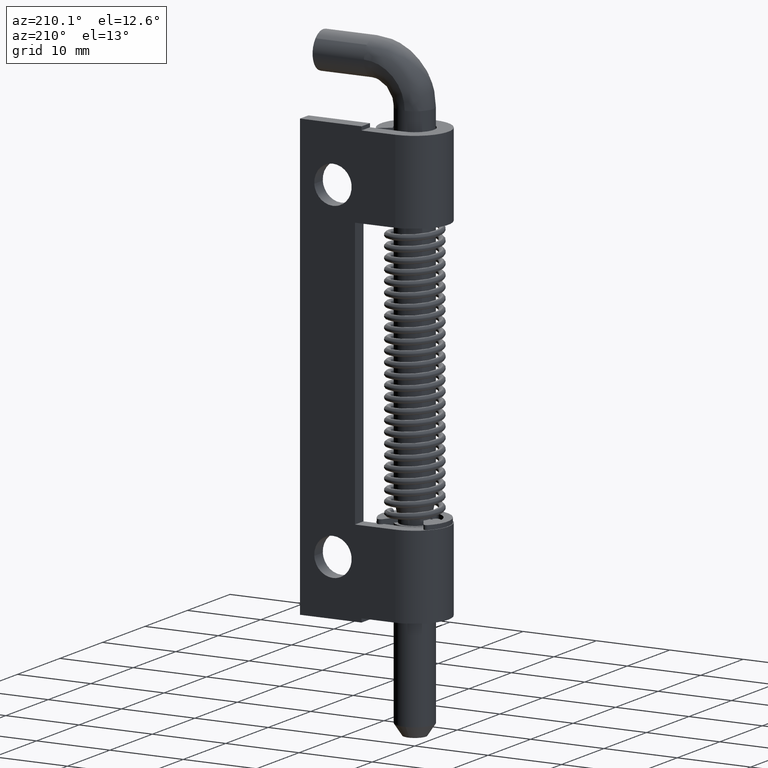
[diagram: clean part render]
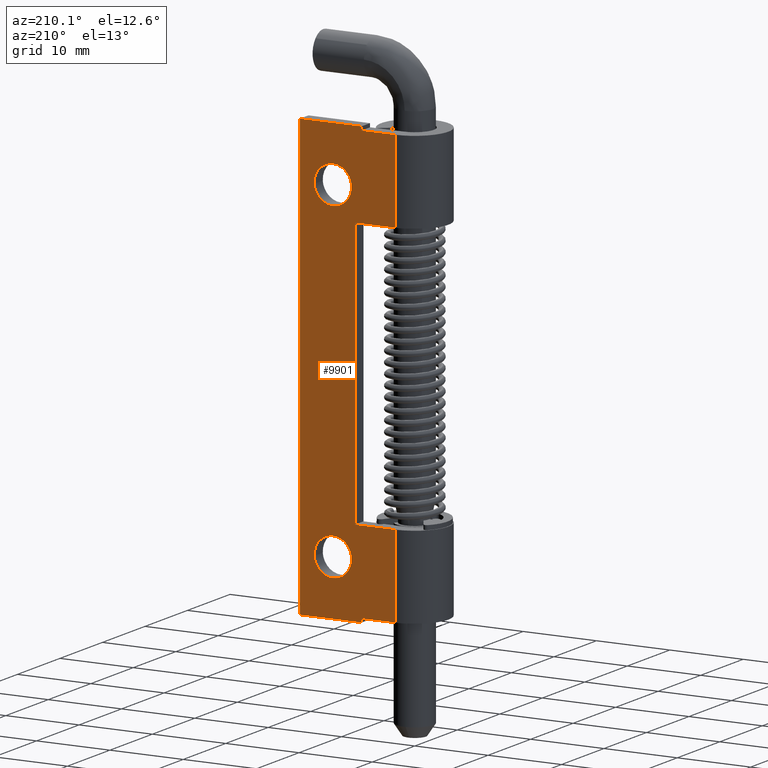
[diagram: same view with one face highlighted and labeled with its STEP entity id]
A machine part, auxiliary view. The second image highlights one B-rep face of the part: STEP entity #9901.
In plain terms, the highlighted face is a freeform B-spline surface patch.
Its self-contained STEP definition (entity closure, byte-faithful):
#9008=CARTESIAN_POINT('',(5.967825707789778,4.599999999999941,66.800987298552883));
#9009=VERTEX_POINT('',#9008);
#9010=CARTESIAN_POINT('',(8.500000000000101,4.599999999999940,63.950000000034912));
#9011=VERTEX_POINT('',#9010);
#9012=CARTESIAN_POINT('',(5.967825707789778,4.599999999999941,66.800987298552897));
#9013=CARTESIAN_POINT('',(5.950000000000101,4.599999999999940,66.651021505292022));
#9014=CARTESIAN_POINT('',(5.950000000000101,4.599999999999940,66.500000000034902));
#9015=CARTESIAN_POINT('',(5.950000000000101,4.599999999999941,63.950000000034919));
#9016=CARTESIAN_POINT('',(8.500000000000101,4.599999999999940,63.950000000034912));
#9024=(BOUNDED_CURVE()B_SPLINE_CURVE(2,(#9012,#9013,#9014,#9015,#9016),.UNSPECIFIED.,.F.,.U.)B_SPLINE_CURVE_WITH_KNOTS((3,2,3),(0.229562473496523,0.250000000000000,0.500000000000000),.UNSPECIFIED.)CURVE()GEOMETRIC_REPRESENTATION_ITEM()RATIONAL_B_SPLINE_CURVE((0.956026754150408,0.976055948311246,1.0,0.707106781186548,1.0))REPRESENTATION_ITEM(''));
#9025=EDGE_CURVE('',#9009,#9011,#9024,.T.);
#9066=CARTESIAN_POINT('',(11.045243735731930,4.599999999999939,66.344326220232702));
#9067=VERTEX_POINT('',#9066);
#9073=CARTESIAN_POINT('',(8.500000000000101,4.599999999999940,63.950000000034912));
#9074=CARTESIAN_POINT('',(10.898800463077887,4.599999999999940,63.950000000034912));
#9075=CARTESIAN_POINT('',(11.045243735731932,4.599999999999939,66.344326220232702));
#9083=(BOUNDED_CURVE()B_SPLINE_CURVE(2,(#9073,#9074,#9075),.UNSPECIFIED.,.F.,.U.)B_SPLINE_CURVE_WITH_KNOTS((3,3),(0.500000000000000,0.739332961701217),.UNSPECIFIED.)CURVE()GEOMETRIC_REPRESENTATION_ITEM()RATIONAL_B_SPLINE_CURVE((1.0,0.719603993916695,0.976072040514270))REPRESENTATION_ITEM(''));
#9084=EDGE_CURVE('',#9011,#9067,#9083,.T.);
#9107=CARTESIAN_POINT('',(8.500000000000101,4.599999999999940,69.050000000034899));
#9108=VERTEX_POINT('',#9107);
#9109=CARTESIAN_POINT('',(8.500000000000101,4.599999999999940,69.050000000034899));
#9110=CARTESIAN_POINT('',(6.235154959082160,4.599999999999941,69.050000000034899));
#9111=CARTESIAN_POINT('',(5.967825707789778,4.599999999999941,66.800987298552883));
#9119=(BOUNDED_CURVE()B_SPLINE_CURVE(2,(#9109,#9110,#9111),.UNSPECIFIED.,.F.,.U.)B_SPLINE_CURVE_WITH_KNOTS((3,3),(0.0,0.229562473496524),.UNSPECIFIED.)CURVE()GEOMETRIC_REPRESENTATION_ITEM()RATIONAL_B_SPLINE_CURVE((1.0,0.731050832875301,0.956026754150408))REPRESENTATION_ITEM(''));
#9120=EDGE_CURVE('',#9108,#9009,#9119,.T.);
#9122=CARTESIAN_POINT('',(11.045243735731930,4.599999999999939,66.344326220232702));
#9123=CARTESIAN_POINT('',(11.050000000000106,4.599999999999940,66.422090449624008));
#9124=CARTESIAN_POINT('',(11.050000000000100,4.599999999999940,66.500000000034902));
#9125=CARTESIAN_POINT('',(11.050000000000102,4.599999999999941,69.050000000034899));
#9126=CARTESIAN_POINT('',(8.500000000000101,4.599999999999940,69.050000000034899));
#9134=(BOUNDED_CURVE()B_SPLINE_CURVE(2,(#9122,#9123,#9124,#9125,#9126),.UNSPECIFIED.,.F.,.U.)B_SPLINE_CURVE_WITH_KNOTS((3,2,3),(0.739332961701218,0.750000000000000,1.0),.UNSPECIFIED.)CURVE()GEOMETRIC_REPRESENTATION_ITEM()RATIONAL_B_SPLINE_CURVE((0.976072040514272,0.987502787269854,1.0,0.707106781186548,1.0))REPRESENTATION_ITEM(''));
#9135=EDGE_CURVE('',#9067,#9108,#9134,.T.);
#9194=CARTESIAN_POINT('',(5.967825707789780,4.599999999999941,21.800987298552879));
#9195=VERTEX_POINT('',#9194);
#9196=CARTESIAN_POINT('',(8.500000000000101,4.599999999999940,18.950000000034901));
#9197=VERTEX_POINT('',#9196);
#9198=CARTESIAN_POINT('',(5.967825707789780,4.599999999999941,21.800987298552879));
#9199=CARTESIAN_POINT('',(5.950000000000101,4.599999999999939,21.651021505292036));
#9200=CARTESIAN_POINT('',(5.950000000000101,4.599999999999940,21.500000000034898));
#9201=CARTESIAN_POINT('',(5.950000000000101,4.599999999999941,18.950000000034894));
#9202=CARTESIAN_POINT('',(8.500000000000101,4.599999999999940,18.950000000034901));
#9210=(BOUNDED_CURVE()B_SPLINE_CURVE(2,(#9198,#9199,#9200,#9201,#9202),.UNSPECIFIED.,.F.,.U.)B_SPLINE_CURVE_WITH_KNOTS((3,2,3),(0.229562473496522,0.250000000000000,0.500000000000000),.UNSPECIFIED.)CURVE()GEOMETRIC_REPRESENTATION_ITEM()RATIONAL_B_SPLINE_CURVE((0.956026754150406,0.976055948311245,1.0,0.707106781186548,1.0))REPRESENTATION_ITEM(''));
#9211=EDGE_CURVE('',#9195,#9197,#9210,.T.);
#9252=CARTESIAN_POINT('',(11.045243735731930,4.599999999999940,21.344326220232709));
#9253=VERTEX_POINT('',#9252);
#9259=CARTESIAN_POINT('',(8.500000000000101,4.599999999999940,18.950000000034901));
#9260=CARTESIAN_POINT('',(10.898800463077887,4.599999999999940,18.950000000034898));
#9261=CARTESIAN_POINT('',(11.045243735731932,4.599999999999940,21.344326220232709));
#9269=(BOUNDED_CURVE()B_SPLINE_CURVE(2,(#9259,#9260,#9261),.UNSPECIFIED.,.F.,.U.)B_SPLINE_CURVE_WITH_KNOTS((3,3),(0.500000000000000,0.739332961701217),.UNSPECIFIED.)CURVE()GEOMETRIC_REPRESENTATION_ITEM()RATIONAL_B_SPLINE_CURVE((1.0,0.719603993916695,0.976072040514270))REPRESENTATION_ITEM(''));
#9270=EDGE_CURVE('',#9197,#9253,#9269,.T.);
#9293=CARTESIAN_POINT('',(8.500000000000101,4.599999999999940,24.050000000034899));
#9294=VERTEX_POINT('',#9293);
#9295=CARTESIAN_POINT('',(8.500000000000101,4.599999999999940,24.050000000034899));
#9296=CARTESIAN_POINT('',(6.235154959082173,4.599999999999939,24.050000000034903));
#9297=CARTESIAN_POINT('',(5.967825707789780,4.599999999999941,21.800987298552879));
#9305=(BOUNDED_CURVE()B_SPLINE_CURVE(2,(#9295,#9296,#9297),.UNSPECIFIED.,.F.,.U.)B_SPLINE_CURVE_WITH_KNOTS((3,3),(0.0,0.229562473496522),.UNSPECIFIED.)CURVE()GEOMETRIC_REPRESENTATION_ITEM()RATIONAL_B_SPLINE_CURVE((1.0,0.731050832875303,0.956026754150406))REPRESENTATION_ITEM(''));
#9306=EDGE_CURVE('',#9294,#9195,#9305,.T.);
#9308=CARTESIAN_POINT('',(11.045243735731924,4.599999999999940,21.344326220232709));
#9309=CARTESIAN_POINT('',(11.050000000000104,4.599999999999939,21.422090449624008));
#9310=CARTESIAN_POINT('',(11.050000000000100,4.599999999999940,21.500000000034898));
#9311=CARTESIAN_POINT('',(11.050000000000102,4.599999999999941,24.050000000034903));
#9312=CARTESIAN_POINT('',(8.500000000000101,4.599999999999940,24.050000000034899));
#9320=(BOUNDED_CURVE()B_SPLINE_CURVE(2,(#9308,#9309,#9310,#9311,#9312),.UNSPECIFIED.,.F.,.U.)B_SPLINE_CURVE_WITH_KNOTS((3,2,3),(0.739332961701219,0.750000000000000,1.0),.UNSPECIFIED.)CURVE()GEOMETRIC_REPRESENTATION_ITEM()RATIONAL_B_SPLINE_CURVE((0.976072040514272,0.987502787269854,1.0,0.707106781186548,1.0))REPRESENTATION_ITEM(''));
#9321=EDGE_CURVE('',#9253,#9294,#9320,.T.);
#9363=CARTESIAN_POINT('',(4.600000000000110,4.600000000000000,74.000000000034902));
#9364=VERTEX_POINT('',#9363);
#9372=CARTESIAN_POINT('',(4.600000000000110,4.600000000000000,73.500000000000000));
#9373=VERTEX_POINT('',#9372);
#9374=CARTESIAN_POINT('',(4.600000000000110,4.600000000000000,73.500000000000000));
#9375=CARTESIAN_POINT('',(4.600000000000110,4.600000000000000,74.000000000034902));
#9376=QUASI_UNIFORM_CURVE('',1,(#9374,#9375),.UNSPECIFIED.,.F.,.U.);
#9377=EDGE_CURVE('',#9373,#9364,#9376,.T.);
#9399=CARTESIAN_POINT('',(0.0,4.600000000000000,73.500000000000000));
#9400=VERTEX_POINT('',#9399);
#9456=CARTESIAN_POINT('',(0.0,4.600000000000000,73.500000000000000));
#9457=CARTESIAN_POINT('',(4.600000000000110,4.600000000000000,73.500000000000000));
#9458=QUASI_UNIFORM_CURVE('',1,(#9456,#9457),.UNSPECIFIED.,.F.,.U.);
#9459=EDGE_CURVE('',#9400,#9373,#9458,.T.);
#9471=CARTESIAN_POINT('',(0.0,4.600000000000000,25.750000000034849));
#9472=VERTEX_POINT('',#9471);
#9527=CARTESIAN_POINT('',(5.500000000000100,4.600000000000000,25.750000000034849));
#9528=VERTEX_POINT('',#9527);
#9534=CARTESIAN_POINT('',(5.500000000000100,4.600000000000000,25.750000000034849));
#9535=CARTESIAN_POINT('',(0.0,4.600000000000000,25.750000000034849));
#9536=QUASI_UNIFORM_CURVE('',1,(#9534,#9535),.UNSPECIFIED.,.F.,.U.);
#9537=EDGE_CURVE('',#9528,#9472,#9536,.T.);
#9547=CARTESIAN_POINT('',(0.0,4.600000000000000,62.250000000034902));
#9548=VERTEX_POINT('',#9547);
#9549=CARTESIAN_POINT('',(5.500000000000100,4.600000000000000,62.250000000034902));
#9550=VERTEX_POINT('',#9549);
#9551=CARTESIAN_POINT('',(0.0,4.600000000000000,62.250000000034902));
#9552=CARTESIAN_POINT('',(5.500000000000100,4.600000000000000,62.250000000034902));
#9553=QUASI_UNIFORM_CURVE('',1,(#9551,#9552),.UNSPECIFIED.,.F.,.U.);
#9554=EDGE_CURVE('',#9548,#9550,#9553,.T.);
#9631=CARTESIAN_POINT('',(5.500000000000100,4.600000000000000,62.250000000034902));
#9632=CARTESIAN_POINT('',(5.500000000000100,4.600000000000000,25.750000000034849));
#9633=QUASI_UNIFORM_CURVE('',1,(#9631,#9632),.UNSPECIFIED.,.F.,.U.);
#9634=EDGE_CURVE('',#9550,#9528,#9633,.T.);
#9645=CARTESIAN_POINT('',(4.600000000000110,4.600000000000000,14.500000000000000));
#9646=VERTEX_POINT('',#9645);
#9654=CARTESIAN_POINT('',(4.600000000000110,4.600000000000000,14.000000000034900));
#9655=VERTEX_POINT('',#9654);
#9656=CARTESIAN_POINT('',(4.600000000000110,4.600000000000000,14.000000000034900));
#9657=CARTESIAN_POINT('',(4.600000000000110,4.600000000000000,14.500000000000000));
#9658=QUASI_UNIFORM_CURVE('',1,(#9656,#9657),.UNSPECIFIED.,.F.,.U.);
#9659=EDGE_CURVE('',#9655,#9646,#9658,.T.);
#9683=CARTESIAN_POINT('',(0.0,4.600000000000000,14.500000000000000));
#9684=VERTEX_POINT('',#9683);
#9704=CARTESIAN_POINT('',(4.600000000000110,4.600000000000000,14.500000000000000));
#9705=CARTESIAN_POINT('',(0.0,4.600000000000000,14.500000000000000));
#9706=QUASI_UNIFORM_CURVE('',1,(#9704,#9705),.UNSPECIFIED.,.F.,.U.);
#9707=EDGE_CURVE('',#9646,#9684,#9706,.T.);
#9752=CARTESIAN_POINT('',(13.0,4.600000000000000,14.000000000034859));
#9753=VERTEX_POINT('',#9752);
#9754=CARTESIAN_POINT('',(13.0,4.600000000000000,14.000000000034859));
#9755=CARTESIAN_POINT('',(4.600000000000110,4.600000000000000,14.000000000034900));
#9756=QUASI_UNIFORM_CURVE('',1,(#9754,#9755),.UNSPECIFIED.,.F.,.U.);
#9757=EDGE_CURVE('',#9753,#9655,#9756,.T.);
#9779=CARTESIAN_POINT('',(13.0,4.600000000000000,74.000000000034902));
#9780=VERTEX_POINT('',#9779);
#9781=CARTESIAN_POINT('',(13.0,4.600000000000000,74.000000000034902));
#9782=CARTESIAN_POINT('',(4.600000000000110,4.600000000000000,74.000000000034902));
#9783=QUASI_UNIFORM_CURVE('',1,(#9781,#9782),.UNSPECIFIED.,.F.,.U.);
#9784=EDGE_CURVE('',#9780,#9364,#9783,.T.);
#9808=CARTESIAN_POINT('',(13.0,4.600000000000000,74.000000000034902));
#9809=CARTESIAN_POINT('',(13.0,4.600000000000000,14.000000000034859));
#9810=QUASI_UNIFORM_CURVE('',1,(#9808,#9809),.UNSPECIFIED.,.F.,.U.);
#9811=EDGE_CURVE('',#9780,#9753,#9810,.T.);
#9862=CARTESIAN_POINT('',(-0.649349974803478,4.600000000000000,76.996999883743257));
#9863=CARTESIAN_POINT('',(-0.649349974803478,4.600000000000000,11.002998507001100));
#9864=CARTESIAN_POINT('',(13.649350323490649,4.600000000000000,76.996999883743257));
#9865=CARTESIAN_POINT('',(13.649350323490649,4.600000000000000,11.002998507001100));
#9866=B_SPLINE_SURFACE_WITH_KNOTS('',1,1,((#9862,#9864),(#9863,#9865)),.UNSPECIFIED.,.F.,.F.,.U.,(2,2),(2,2),(0.0,65.994001376742162),(0.0,14.298700298294129),.UNSPECIFIED.);
#9867=CARTESIAN_POINT('',(0.0,4.600000000000000,73.500000000000000));
#9868=CARTESIAN_POINT('',(0.0,4.600000000000000,62.250000000034902));
#9869=QUASI_UNIFORM_CURVE('',1,(#9867,#9868),.UNSPECIFIED.,.F.,.U.);
#9870=EDGE_CURVE('',#9400,#9548,#9869,.T.);
#9871=ORIENTED_EDGE('',*,*,#9870,.F.);
#9872=ORIENTED_EDGE('',*,*,#9459,.T.);
#9873=ORIENTED_EDGE('',*,*,#9377,.T.);
#9874=ORIENTED_EDGE('',*,*,#9784,.F.);
#9875=ORIENTED_EDGE('',*,*,#9811,.T.);
#9876=ORIENTED_EDGE('',*,*,#9757,.T.);
#9877=ORIENTED_EDGE('',*,*,#9659,.T.);
#9878=ORIENTED_EDGE('',*,*,#9707,.T.);
#9879=CARTESIAN_POINT('',(0.0,4.600000000000000,25.750000000034849));
#9880=CARTESIAN_POINT('',(0.0,4.600000000000000,14.500000000000000));
#9881=QUASI_UNIFORM_CURVE('',1,(#9879,#9880),.UNSPECIFIED.,.F.,.U.);
#9882=EDGE_CURVE('',#9472,#9684,#9881,.T.);
#9883=ORIENTED_EDGE('',*,*,#9882,.F.);
#9884=ORIENTED_EDGE('',*,*,#9537,.F.);
#9885=ORIENTED_EDGE('',*,*,#9634,.F.);
#9886=ORIENTED_EDGE('',*,*,#9554,.F.);
#9887=EDGE_LOOP('',(#9871,#9872,#9873,#9874,#9875,#9876,#9877,#9878,#9883,#9884,#9885,#9886));
#9888=FACE_OUTER_BOUND('',#9887,.T.);
#9889=ORIENTED_EDGE('',*,*,#9270,.T.);
#9890=ORIENTED_EDGE('',*,*,#9321,.T.);
#9891=ORIENTED_EDGE('',*,*,#9306,.T.);
#9892=ORIENTED_EDGE('',*,*,#9211,.T.);
#9893=EDGE_LOOP('',(#9889,#9890,#9891,#9892));
#9894=FACE_BOUND('',#9893,.T.);
#9895=ORIENTED_EDGE('',*,*,#9084,.T.);
#9896=ORIENTED_EDGE('',*,*,#9135,.T.);
#9897=ORIENTED_EDGE('',*,*,#9120,.T.);
#9898=ORIENTED_EDGE('',*,*,#9025,.T.);
#9899=EDGE_LOOP('',(#9895,#9896,#9897,#9898));
#9900=FACE_BOUND('',#9899,.T.);
#9901=ADVANCED_FACE('',(#9888,#9894,#9900),#9866,.F.);